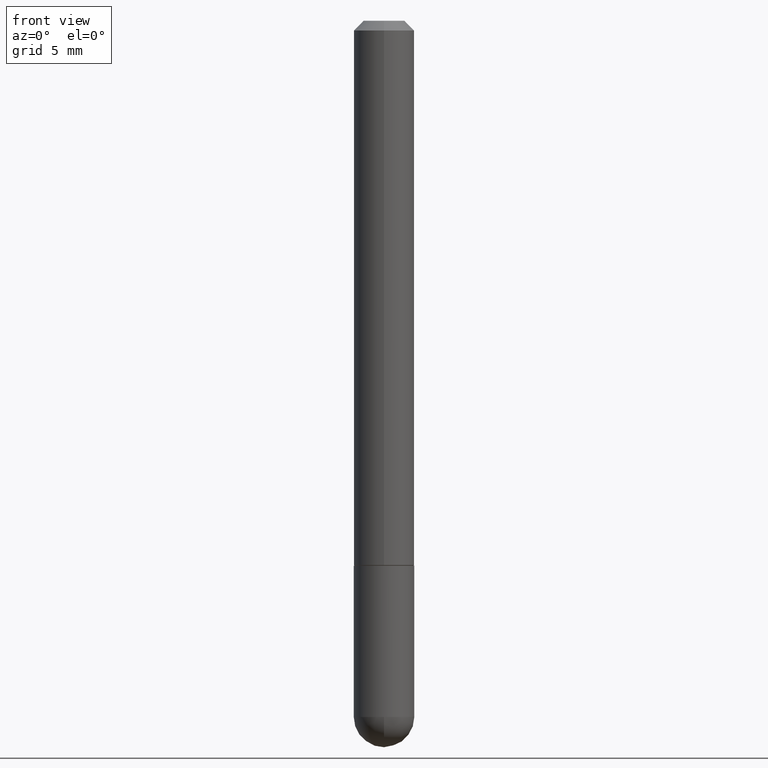
[diagram: clean part render]
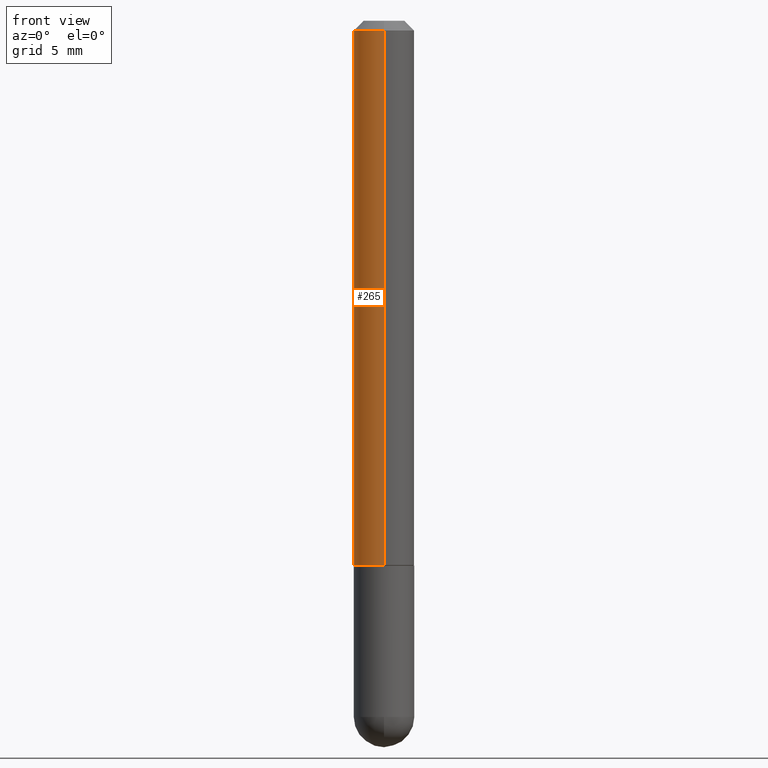
[diagram: same view with one face highlighted and labeled with its STEP entity id]
A machine part, front view. The second image highlights one B-rep face of the part: STEP entity #265.
In plain terms, the highlighted cylindrical surface (edge-blend (fillet) strip) has radius 1.5875 mm, axis along (-0, 0, 1).
Its self-contained STEP definition (entity closure, byte-faithful):
#11 = CARTESIAN_POINT ( 'NONE',  ( -4.287811248607198352E-16, -0.06250000000000001388, -0.01999999999999985123 ) ) ;
#24 = DIRECTION ( 'NONE',  ( -2.466183177392588152E-29, 3.461817180285283687E-15, 1.000000000000000000 ) ) ;
#25 = VERTEX_POINT ( 'NONE', #173 ) ;
#31 = VECTOR ( 'NONE', #326, 39.37007874015748143 ) ;
#54 = VERTEX_POINT ( 'NONE', #11 ) ;
#57 = EDGE_CURVE ( 'NONE', #25, #124, #395, .T. ) ;
#61 = DIRECTION ( 'NONE',  ( -6.982962677686265133E-15, -1.000000000000000000, 4.370956789862817205E-15 ) ) ;
#65 = CARTESIAN_POINT ( 'NONE',  ( 4.364351673553917187E-16, 0.06249999999999988204, -0.02000000000000028491 ) ) ;
#76 = ORIENTED_EDGE ( 'NONE', *, *, #298, .T. ) ;
#92 = DIRECTION ( 'NONE',  ( -6.982962677686265922E-15, -1.000000000000000000, 3.483106191921938315E-15 ) ) ;
#96 = ORIENTED_EDGE ( 'NONE', *, *, #321, .T. ) ;
#100 = DIRECTION ( 'NONE',  ( -2.466183177392588152E-29, 3.461817180285283687E-15, 1.000000000000000000 ) ) ;
#102 = DIRECTION ( 'NONE',  ( -2.466183177392588152E-29, 3.461817180285283687E-15, 1.000000000000000000 ) ) ;
#106 = CIRCLE ( 'NONE', #327, 0.06249999999999995143 ) ;
#124 = VERTEX_POINT ( 'NONE', #65 ) ;
#136 = EDGE_LOOP ( 'NONE', ( #399, #76, #96, #383 ) ) ;
#142 = LINE ( 'NONE', #309, #398 ) ;
#166 = DIRECTION ( 'NONE',  ( -6.982962677686265922E-15, -1.000000000000000000, 3.461817180285283292E-15 ) ) ;
#173 = CARTESIAN_POINT ( 'NONE',  ( 4.440892098500769143E-16, 0.06249999999999615585, -1.124000000000000332 ) ) ;
#214 = DIRECTION ( 'NONE',  ( -2.466183177392588152E-29, 3.461817180285283687E-15, 1.000000000000000000 ) ) ;
#222 = CARTESIAN_POINT ( 'NONE',  ( 0.000000000000000000, 0.000000000000000000, 0.000000000000000000 ) ) ;
#228 = CIRCLE ( 'NONE', #356, 0.06250000000000005551 ) ;
#233 = CARTESIAN_POINT ( 'NONE',  ( 4.440892098500625669E-16, 0.06250000000000000000, -2.163635737678302058E-16 ) ) ;
#239 = AXIS2_PLACEMENT_3D ( 'NONE', #222, #100, #166 ) ;
#257 = FACE_OUTER_BOUND ( 'NONE', #136, .T. ) ;
#265 = ADVANCED_FACE ( 'NONE', ( #257 ), #346, .T. ) ;
#298 = EDGE_CURVE ( 'NONE', #25, #376, #228, .T. ) ;
#309 = CARTESIAN_POINT ( 'NONE',  ( -4.364351673553916201E-16, -0.06250000000000000000, 2.163635737678302058E-16 ) ) ;
#321 = EDGE_CURVE ( 'NONE', #376, #54, #142, .T. ) ;
#326 = DIRECTION ( 'NONE',  ( -2.466183177392588152E-29, 3.461817180285283687E-15, 1.000000000000000000 ) ) ;
#327 = AXIS2_PLACEMENT_3D ( 'NONE', #373, #214, #92 ) ;
#339 = CARTESIAN_POINT ( 'NONE',  ( -4.364351673553642565E-16, -0.06250000000000394129, -1.123999999999999888 ) ) ;
#346 = CYLINDRICAL_SURFACE ( 'NONE', #239, 0.06250000000000000000 ) ;
#355 = EDGE_CURVE ( 'NONE', #124, #54, #106, .T. ) ;
#356 = AXIS2_PLACEMENT_3D ( 'NONE', #370, #102, #61 ) ;
#370 = CARTESIAN_POINT ( 'NONE',  ( 2.771989891389269485E-29, -3.891082510640658844E-15, -1.124000000000000110 ) ) ;
#373 = CARTESIAN_POINT ( 'NONE',  ( 4.932366354785193785E-31, -6.923634360570589906E-17, -0.02000000000000006981 ) ) ;
#376 = VERTEX_POINT ( 'NONE', #339 ) ;
#383 = ORIENTED_EDGE ( 'NONE', *, *, #355, .F. ) ;
#395 = LINE ( 'NONE', #233, #31 ) ;
#398 = VECTOR ( 'NONE', #24, 39.37007874015748143 ) ;
#399 = ORIENTED_EDGE ( 'NONE', *, *, #57, .F. ) ;